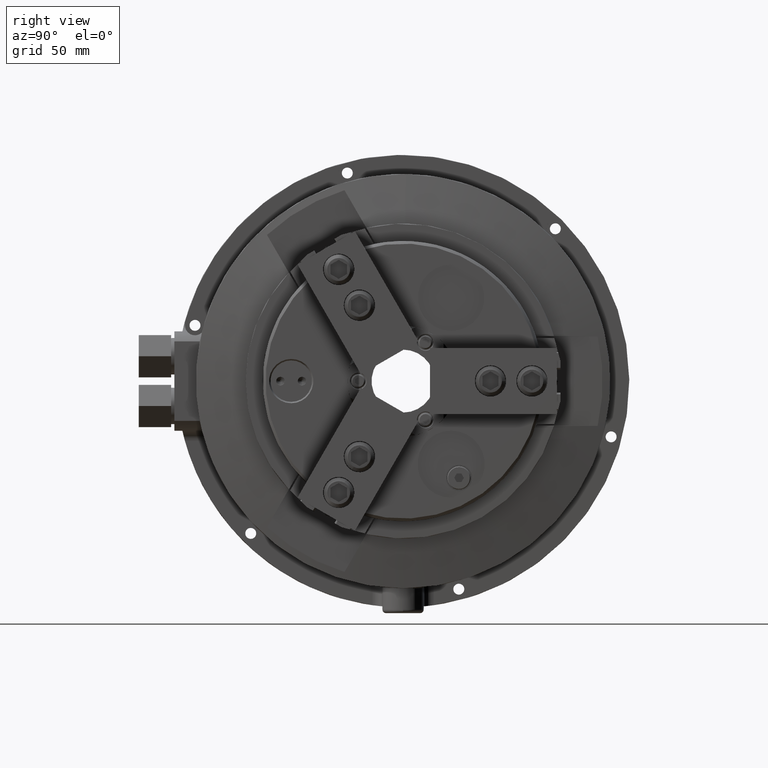
[diagram: clean part render]
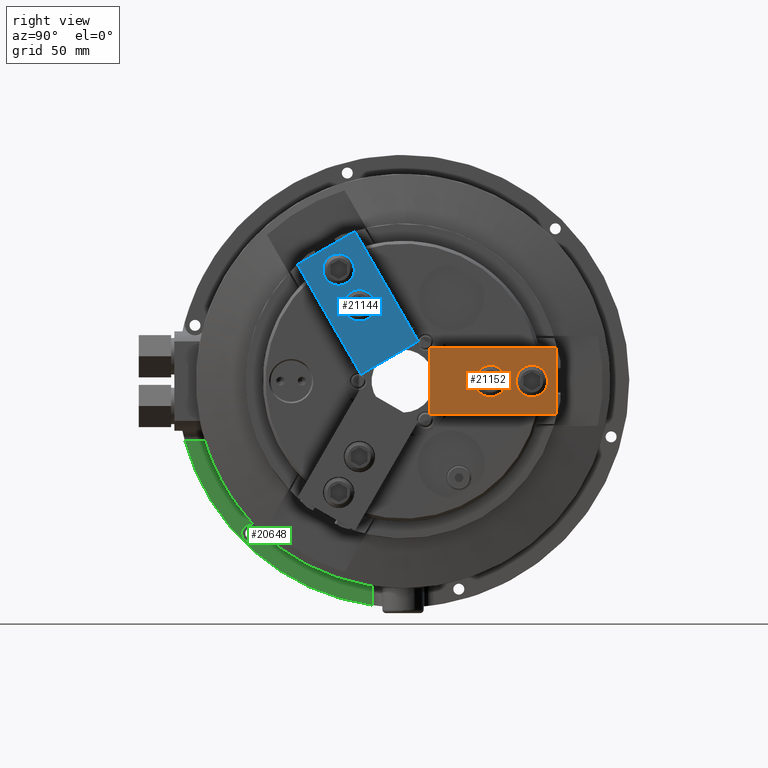
[diagram: same view with three faces highlighted in distinct colors, each labeled with its STEP entity id]
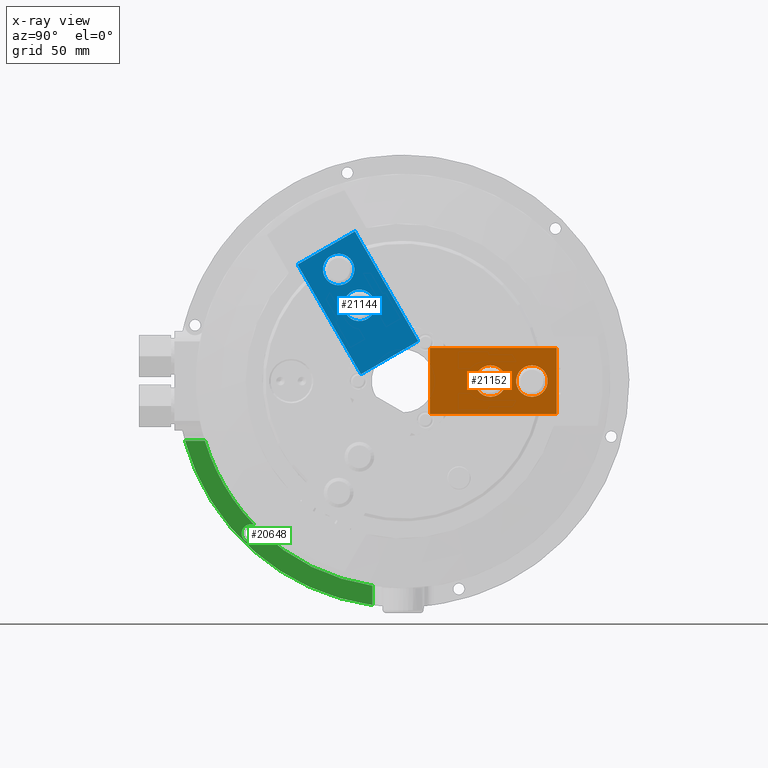
[diagram: x-ray of the same camera — body ghosted, the three highlighted faces saturated]
A machine part, right view with three faces highlighted in distinct colors.
The next image is the same camera in x-ray (body ghosted, the three faces saturated) — at least one of them is partly hidden behind the body in this view.
Their STEP definitions:

[orange] entity #21152 — the highlighted planar face has unit normal (1, 0, 0).
#1966=LINE('',#37565,#3867);
#1972=LINE('',#37577,#3873);
#2125=LINE('',#39704,#4026);
#2126=LINE('',#39706,#4027);
#3867=VECTOR('',#26707,1000.);
#3873=VECTOR('',#26717,1000.);
#4026=VECTOR('',#27332,1000.);
#4027=VECTOR('',#27335,1000.);
#7996=ORIENTED_EDGE('',*,*,#12360,.T.);
#7997=ORIENTED_EDGE('',*,*,#12075,.T.);
#7998=ORIENTED_EDGE('',*,*,#12361,.T.);
#7999=ORIENTED_EDGE('',*,*,#12069,.T.);
#8000=ORIENTED_EDGE('',*,*,#12362,.F.);
#8001=ORIENTED_EDGE('',*,*,#12363,.F.);
#12069=EDGE_CURVE('',#14567,#14566,#1966,.T.);
#12075=EDGE_CURVE('',#14571,#14570,#1972,.T.);
#12360=EDGE_CURVE('',#14566,#14571,#2125,.T.);
#12361=EDGE_CURVE('',#14570,#14567,#2126,.T.);
#12362=EDGE_CURVE('',#14706,#14706,#15830,.T.);
#12363=EDGE_CURVE('',#14707,#14707,#15831,.T.);
#14566=VERTEX_POINT('',#37564);
#14567=VERTEX_POINT('',#37566);
#14570=VERTEX_POINT('',#37576);
#14571=VERTEX_POINT('',#37578);
#14706=VERTEX_POINT('',#39708);
#14707=VERTEX_POINT('',#39710);
#15830=CIRCLE('',#22882,9.5);
#15831=CIRCLE('',#22883,9.5);
#16930=EDGE_LOOP('',(#7996,#7997,#7998,#7999));
#16931=EDGE_LOOP('',(#8000));
#16932=EDGE_LOOP('',(#8001));
#18682=FACE_BOUND('',#16930,.T.);
#18683=FACE_BOUND('',#16931,.T.);
#18684=FACE_BOUND('',#16932,.T.);
#20190=PLANE('',#22881);
#21152=ADVANCED_FACE('',(#18682,#18683,#18684),#20190,.T.);
#22881=AXIS2_PLACEMENT_3D('',#39705,#27333,#27334);
#22882=AXIS2_PLACEMENT_3D('',#39707,#27336,#27337);
#22883=AXIS2_PLACEMENT_3D('',#39709,#27338,#27339);
#26707=DIRECTION('',(0.,0.,1.));
#26717=DIRECTION('',(0.,0.,-1.));
#27332=DIRECTION('',(0.,-1.,1.36056743213867E-16));
#27333=DIRECTION('',(1.,0.,0.));
#27334=DIRECTION('',(0.,0.,-1.));
#27335=DIRECTION('',(0.,1.,1.36056743213867E-16));
#27336=DIRECTION('',(1.,0.,0.));
#27337=DIRECTION('',(0.,0.,-1.));
#27338=DIRECTION('',(1.,0.,0.));
#27339=DIRECTION('',(0.,0.,-1.));
#37564=CARTESIAN_POINT('',(38.5,92.75,20.));
#37565=CARTESIAN_POINT('',(38.5,92.75,20.));
#37566=CARTESIAN_POINT('',(38.5,92.75,-20.));
#37576=CARTESIAN_POINT('',(38.5,16.25,-20.));
#37577=CARTESIAN_POINT('',(38.5,16.25,20.));
#37578=CARTESIAN_POINT('',(38.5,16.25,20.));
#39704=CARTESIAN_POINT('',(38.5,92.75,20.));
#39705=CARTESIAN_POINT('',(38.5,16.25,0.));
#39706=CARTESIAN_POINT('',(38.5,92.75,-20.));
#39707=CARTESIAN_POINT('',(38.5,52.75,0.));
#39708=CARTESIAN_POINT('',(38.5,52.75,-9.5));
#39709=CARTESIAN_POINT('',(38.5,77.75,0.));
#39710=CARTESIAN_POINT('',(38.5,77.75,-9.5));

[blue] entity #21144 — the highlighted planar face has unit normal (1, 0, 0).
#1920=LINE('',#37477,#3821);
#1926=LINE('',#37489,#3827);
#2123=LINE('',#39680,#4024);
#2124=LINE('',#39682,#4025);
#3821=VECTOR('',#26623,1000.);
#3827=VECTOR('',#26633,1000.);
#4024=VECTOR('',#27298,1000.);
#4025=VECTOR('',#27301,1000.);
#7944=ORIENTED_EDGE('',*,*,#12350,.T.);
#7945=ORIENTED_EDGE('',*,*,#12024,.T.);
#7946=ORIENTED_EDGE('',*,*,#12351,.T.);
#7947=ORIENTED_EDGE('',*,*,#12018,.T.);
#7948=ORIENTED_EDGE('',*,*,#12352,.F.);
#7949=ORIENTED_EDGE('',*,*,#12353,.F.);
#12018=EDGE_CURVE('',#14544,#14543,#1920,.T.);
#12024=EDGE_CURVE('',#14548,#14547,#1926,.T.);
#12350=EDGE_CURVE('',#14543,#14548,#2123,.T.);
#12351=EDGE_CURVE('',#14547,#14544,#2124,.T.);
#12352=EDGE_CURVE('',#14700,#14700,#15822,.T.);
#12353=EDGE_CURVE('',#14701,#14701,#15823,.T.);
#14543=VERTEX_POINT('',#37476);
#14544=VERTEX_POINT('',#37478);
#14547=VERTEX_POINT('',#37488);
#14548=VERTEX_POINT('',#37490);
#14700=VERTEX_POINT('',#39684);
#14701=VERTEX_POINT('',#39686);
#15822=CIRCLE('',#22866,9.5);
#15823=CIRCLE('',#22867,9.5);
#16916=EDGE_LOOP('',(#7944,#7945,#7946,#7947));
#16917=EDGE_LOOP('',(#7948));
#16918=EDGE_LOOP('',(#7949));
#18668=FACE_BOUND('',#16916,.T.);
#18669=FACE_BOUND('',#16917,.T.);
#18670=FACE_BOUND('',#16918,.T.);
#20184=PLANE('',#22865);
#21144=ADVANCED_FACE('',(#18668,#18669,#18670),#20184,.T.);
#22865=AXIS2_PLACEMENT_3D('',#39681,#27299,#27300);
#22866=AXIS2_PLACEMENT_3D('',#39683,#27302,#27303);
#22867=AXIS2_PLACEMENT_3D('',#39685,#27304,#27305);
#26623=DIRECTION('',(0.,-0.866025403784438,-0.500000000000001));
#26633=DIRECTION('',(0.,0.866025403784438,0.500000000000001));
#27298=DIRECTION('',(0.,0.500000000000001,-0.866025403784438));
#27299=DIRECTION('',(1.,0.,0.));
#27300=DIRECTION('',(0.,0.866025403784438,0.500000000000001));
#27301=DIRECTION('',(0.,-0.500000000000001,0.866025403784438));
#27302=DIRECTION('',(1.,0.,0.));
#27303=DIRECTION('',(0.,0.866025403784438,0.500000000000001));
#27304=DIRECTION('',(1.,0.,0.));
#27305=DIRECTION('',(0.,0.866025403784438,0.500000000000001));
#37476=CARTESIAN_POINT('',(38.5,-63.6955080756891,70.3238562010064));
#37477=CARTESIAN_POINT('',(38.5,-63.6955080756891,70.3238562010064));
#37478=CARTESIAN_POINT('',(38.5,-29.0544919243116,90.3238562010066));
#37488=CARTESIAN_POINT('',(38.5,9.19550807568867,24.0729128114972));
#37489=CARTESIAN_POINT('',(38.5,-25.4455080756888,4.07291281149701));
#37490=CARTESIAN_POINT('',(38.5,-25.4455080756888,4.07291281149701));
#39680=CARTESIAN_POINT('',(38.5,-63.6955080756891,70.3238562010064));
#39681=CARTESIAN_POINT('',(38.5,-8.125,14.0729128114971));
#39682=CARTESIAN_POINT('',(38.5,-29.0544919243116,90.3238562010066));
#39683=CARTESIAN_POINT('',(38.5,-26.375,45.682840049629));
#39684=CARTESIAN_POINT('',(38.5,-18.1477586640478,50.432840049629));
#39685=CARTESIAN_POINT('',(38.5,-38.875,67.3334751442399));
#39686=CARTESIAN_POINT('',(38.5,-30.6477586640478,72.0834751442399));

[green] entity #20648 — the highlighted planar face has unit normal (1, 0, 0).
#811=LINE('',#31872,#2712);
#855=LINE('',#32846,#2756);
#2712=VECTOR('',#24312,1000.);
#2756=VECTOR('',#24450,1000.);
#4963=ORIENTED_EDGE('',*,*,#10692,.F.);
#4964=ORIENTED_EDGE('',*,*,#10693,.T.);
#4965=ORIENTED_EDGE('',*,*,#10603,.T.);
#4966=ORIENTED_EDGE('',*,*,#10601,.F.);
#4967=ORIENTED_EDGE('',*,*,#10694,.F.);
#4968=ORIENTED_EDGE('',*,*,#10695,.F.);
#4969=ORIENTED_EDGE('',*,*,#10696,.F.);
#10601=EDGE_CURVE('',#13505,#13506,#811,.T.);
#10603=EDGE_CURVE('',#13507,#13506,#15517,.T.);
#10692=EDGE_CURVE('',#13580,#13581,#15541,.T.);
#10693=EDGE_CURVE('',#13580,#13507,#855,.T.);
#10694=EDGE_CURVE('',#13582,#13505,#15542,.T.);
#10695=EDGE_CURVE('',#13583,#13582,#15543,.T.);
#10696=EDGE_CURVE('',#13581,#13583,#15544,.T.);
#13505=VERTEX_POINT('',#31871);
#13506=VERTEX_POINT('',#31873);
#13507=VERTEX_POINT('',#31924);
#13580=VERTEX_POINT('',#32844);
#13581=VERTEX_POINT('',#32845);
#13582=VERTEX_POINT('',#32848);
#13583=VERTEX_POINT('',#32850);
#15517=CIRCLE('',#22029,136.5);
#15541=CIRCLE('',#22074,124.942045460717);
#15542=CIRCLE('',#22075,124.942045460717);
#15543=CIRCLE('',#22076,5.5);
#15544=CIRCLE('',#22077,124.942045460717);
#16358=EDGE_LOOP('',(#4963,#4964,#4965,#4966,#4967,#4968,#4969));
#18110=FACE_BOUND('',#16358,.T.);
#19789=PLANE('',#22073);
#20648=ADVANCED_FACE('',(#18110),#19789,.T.);
#22029=AXIS2_PLACEMENT_3D('',#31923,#24315,#24316);
#22073=AXIS2_PLACEMENT_3D('',#32842,#24446,#24447);
#22074=AXIS2_PLACEMENT_3D('',#32843,#24448,#24449);
#22075=AXIS2_PLACEMENT_3D('',#32847,#24451,#24452);
#22076=AXIS2_PLACEMENT_3D('',#32849,#24453,#24454);
#22077=AXIS2_PLACEMENT_3D('',#32851,#24455,#24456);
#24312=DIRECTION('',(0.,0.,-1.));
#24315=DIRECTION('',(1.,0.,0.));
#24316=DIRECTION('',(0.,0.,-1.));
#24446=DIRECTION('',(1.,0.,0.));
#24447=DIRECTION('',(0.,0.,-1.));
#24448=DIRECTION('',(1.,0.,0.));
#24449=DIRECTION('',(0.,0.,-1.));
#24450=DIRECTION('',(0.,-1.,0.));
#24451=DIRECTION('',(1.,0.,0.));
#24452=DIRECTION('',(0.,0.,-1.));
#24453=DIRECTION('',(1.,0.,0.));
#24454=DIRECTION('',(0.,0.,-1.));
#24455=DIRECTION('',(1.,0.,0.));
#24456=DIRECTION('',(0.,0.,-1.));
#31871=CARTESIAN_POINT('',(-60.,-18.5,-123.564819928279));
#31872=CARTESIAN_POINT('',(-60.,-18.5,0.));
#31873=CARTESIAN_POINT('',(-60.,-18.5,-135.240526470433));
#31923=CARTESIAN_POINT('',(-60.,0.,0.));
#31924=CARTESIAN_POINT('',(-60.,-131.667194091771,-36.));
#32842=CARTESIAN_POINT('',(-60.,123.000004656999,0.));
#32843=CARTESIAN_POINT('',(-60.,0.,0.));
#32844=CARTESIAN_POINT('',(-60.,-119.643281148203,-36.));
#32845=CARTESIAN_POINT('',(-60.,-108.202985369772,-62.4710227303581));
#32846=CARTESIAN_POINT('',(-60.,123.000004656999,-36.));
#32847=CARTESIAN_POINT('',(-60.,0.,0.));
#32848=CARTESIAN_POINT('',(-60.0000000000002,-86.8371452467814,-89.8322042994459));
#32849=CARTESIAN_POINT('',(-60.,-91.923881554251,-91.9238815542514));
#32850=CARTESIAN_POINT('',(-60.,-89.8322042994454,-86.8371452467818));
#32851=CARTESIAN_POINT('',(-60.,0.,0.));